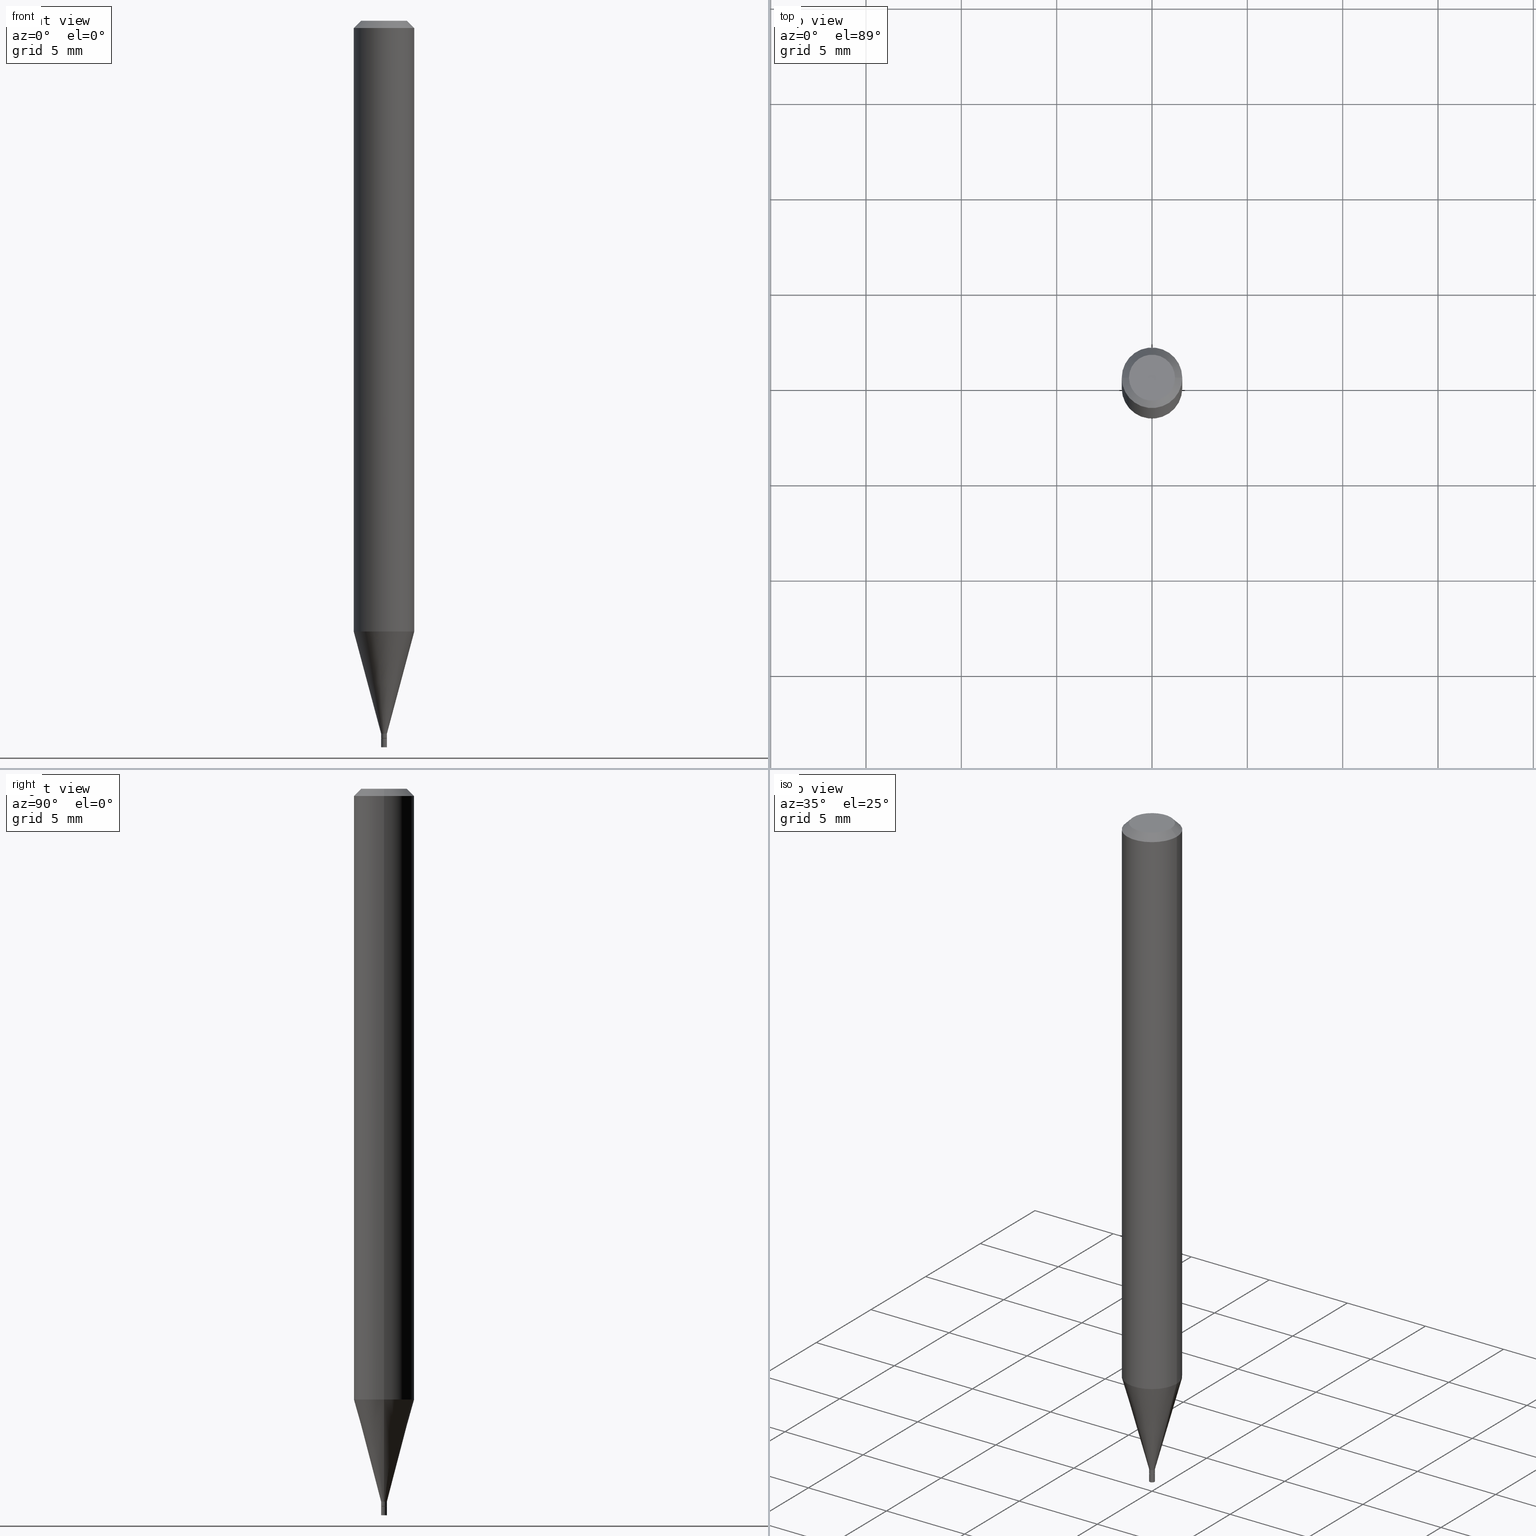
[diagram: canonical four-view strip — front | top / right | iso, engineering-drawing reading convention]
A machine part, canonical four-view strip (front | top / right | iso — engineering-drawing reading convention). The complete STEP part file that produces these views, byte-faithful:
ISO-10303-21;
HEADER;
FILE_DESCRIPTION (( 'STEP AP203' ),
    '1' );
FILE_NAME ('02208.STEP',
    '2024-03-18T19:54:24',
    ( '' ),
    ( '' ),
    'SwSTEP 2.0',
    'SolidWorks 2023',
    '' );
FILE_SCHEMA (( 'CONFIG_CONTROL_DESIGN' ));
ENDSEC;

DATA;
#1 = LOCAL_TIME ( 15, 54, 24.00000000000000000, #391 ) ;
#2 = CARTESIAN_POINT ( 'NONE',  ( 0.006000000000000000125, -5.216273120231660134E-15, -1.482000000000000206 ) ) ;
#3 = DIRECTION ( 'NONE',  ( -2.445468806185136877E-29, 3.491481338843145188E-15, 1.000000000000000000 ) ) ;
#4 = ORIENTED_EDGE ( 'NONE', *, *, #393, .T. ) ;
#5 = CONICAL_SURFACE ( 'NONE', #339, 0.005499999999999999681, 0.7853981633974718157 ) ;
#6 = AXIS2_PLACEMENT_3D ( 'NONE', #270, #87, #414 ) ;
#7 = CARTESIAN_POINT ( 'NONE',  ( 0.005999999999999918593, -5.181358306843227696E-15, -1.471999999999999975 ) ) ;
#8 = CARTESIAN_POINT ( 'NONE',  ( 3.668203209277705088E-31, -5.237222008264718399E-17, -0.01499999999999999944 ) ) ;
#9 = LINE ( 'NONE', #441, #331 ) ;
#10 = EDGE_LOOP ( 'NONE', ( #173, #26, #170, #417 ) ) ;
#11 = EDGE_CURVE ( 'NONE', #223, #123, #349, .T. ) ;
#12 = MANIFOLD_SOLID_BREP ( 'Body-Move/Copy2[2]', #199 ) ;
#13 = DIRECTION ( 'NONE',  ( -2.445468806185136877E-29, 3.491481338843145188E-15, 1.000000000000000000 ) ) ;
#14 = DIRECTION ( 'NONE',  ( -2.445468806185136597E-29, 3.491481338843145583E-15, 1.000000000000000000 ) ) ;
#15 = ORIENTED_EDGE ( 'NONE', *, *, #212, .T. ) ;
#16 = FACE_OUTER_BOUND ( 'NONE', #401, .T. ) ;
#17 = CC_DESIGN_APPROVAL ( #76, ( #68 ) ) ;
#18 = CARTESIAN_POINT ( 'NONE',  ( 1.873992581615772204E-44, -2.675564747051046294E-30, -7.663122002930588880E-16 ) ) ;
#19 = ORIENTED_EDGE ( 'NONE', *, *, #226, .T. ) ;
#20 = CYLINDRICAL_SURFACE ( 'NONE', #390, 0.005999999999999919460 ) ;
#21 = DIRECTION ( 'NONE',  ( 0.2588190451025215721, 1.565188264969619995E-15, 0.9659258262890679791 ) ) ;
#22 = CARTESIAN_POINT ( 'NONE',  ( 1.873992581615772204E-44, -2.675564747051046294E-30, -7.663122002930588880E-16 ) ) ;
#23 = ORIENTED_EDGE ( 'NONE', *, *, #50, .F. ) ;
#24 = CARTESIAN_POINT ( 'NONE',  ( 0.000000000000000000, 0.000000000000000000, 0.000000000000000000 ) ) ;
#25 = APPROVAL_DATE_TIME ( #176, #108 ) ;
#26 = ORIENTED_EDGE ( 'NONE', *, *, #60, .T. ) ;
#27 = COORDINATED_UNIVERSAL_TIME_OFFSET ( 5, 0, .BEHIND. ) ;
#28 = ORIENTED_EDGE ( 'NONE', *, *, #445, .T. ) ;
#29 = CONICAL_SURFACE ( 'NONE', #77, 0.005499999999999999681, 0.7853981633974718157 ) ;
#30 = LOCAL_TIME ( 15, 54, 24.00000000000000000, #27 ) ;
#31 = ORIENTED_EDGE ( 'NONE', *, *, #396, .F. ) ;
#32 = CC_DESIGN_PERSON_AND_ORGANIZATION_ASSIGNMENT ( #203, #34, ( #216 ) ) ;
#33 = APPROVAL_STATUS ( 'not_yet_approved' ) ;
#34 = PERSON_AND_ORGANIZATION_ROLE ( 'creator' ) ;
#35 = APPLICATION_CONTEXT ( 'configuration controlled 3d designs of mechanical parts and assemblies' ) ;
#36 = AXIS2_PLACEMENT_3D ( 'NONE', #82, #234, #56 ) ;
#37 = CARTESIAN_POINT ( 'NONE',  ( 0.005499999999999999681, -5.212781638892817127E-15, -1.482000000000000206 ) ) ;
#38 = FACE_OUTER_BOUND ( 'NONE', #352, .T. ) ;
#39 = DIRECTION ( 'NONE',  ( 1.000000000000000000, -6.982962677686245411E-15, 0.000000000000000000 ) ) ;
#40 = AXIS2_PLACEMENT_3D ( 'NONE', #52, #126, #332 ) ;
#41 = APPROVAL_PERSON_ORGANIZATION ( #425, #76, #208 ) ;
#42 = DIRECTION ( 'NONE',  ( 1.000000000000000000, -6.982962677686332186E-15, 0.000000000000000000 ) ) ;
#43 = PRODUCT_RELATED_PRODUCT_CATEGORY ( 'detail', '', ( #67 ) ) ;
#44 = DIRECTION ( 'NONE',  ( 1.000000000000000000, -6.982962677686245411E-15, 0.000000000000000000 ) ) ;
#45 = DIRECTION ( 'NONE',  ( -1.000000000000000000, 6.982962677686266711E-15, 0.000000000000000000 ) ) ;
#46 = VERTEX_POINT ( 'NONE', #37 ) ;
#47 = CIRCLE ( 'NONE', #119, 0.005999999999999922062 ) ;
#48 = LINE ( 'NONE', #449, #96 ) ;
#49 =( GEOMETRIC_REPRESENTATION_CONTEXT ( 3 ) GLOBAL_UNCERTAINTY_ASSIGNED_CONTEXT ( ( #192 ) ) GLOBAL_UNIT_ASSIGNED_CONTEXT ( ( #302, #308, #410 ) ) REPRESENTATION_CONTEXT ( 'NONE', 'WORKASPACE' ) );
#50 = EDGE_CURVE ( 'NONE', #89, #387, #323, .T. ) ;
#51 = DIRECTION ( 'NONE',  ( -2.445468806185136597E-29, 3.491481338843145583E-15, 1.000000000000000000 ) ) ;
#52 = CARTESIAN_POINT ( 'NONE',  ( 3.624184770766373010E-29, -5.174375344165542471E-15, -1.482000000000000206 ) ) ;
#53 = DIRECTION ( 'NONE',  ( 1.000000000000000000, -6.982962677686261977E-15, 0.000000000000000000 ) ) ;
#54 = FACE_OUTER_BOUND ( 'NONE', #366, .T. ) ;
#55 = ORIENTED_EDGE ( 'NONE', *, *, #195, .F. ) ;
#56 = DIRECTION ( 'NONE',  ( 1.000000000000000000, -6.982962677686266711E-15, 4.876176775795935793E-29 ) ) ;
#57 = CONICAL_SURFACE ( 'NONE', #237, 0.005999999999999918593, 0.2617993877991502960 ) ;
#58 = VECTOR ( 'NONE', #13, 39.37007874015748143 ) ;
#59 = CARTESIAN_POINT ( 'NONE',  ( -0.06250000000000000000, -1.783718768135502348E-15, -0.01499999999999999944 ) ) ;
#60 = EDGE_CURVE ( 'NONE', #215, #292, #47, .T. ) ;
#61 = ORIENTED_EDGE ( 'NONE', *, *, #265, .T. ) ;
#62 = DATE_AND_TIME ( #242, #463 ) ;
#63 = ORIENTED_EDGE ( 'NONE', *, *, #456, .T. ) ;
#64 = ADVANCED_FACE ( 'NONE', ( #213 ), #287, .F. ) ;
#65 = AXIS2_PLACEMENT_3D ( 'NONE', #275, #266, #79 ) ;
#66 = ORIENTED_EDGE ( 'NONE', *, *, #309, .F. ) ;
#67 = PRODUCT ( '02208', '02208', '', ( #346 ) ) ;
#68 = SECURITY_CLASSIFICATION ( '', '', #312 ) ;
#69 = DATE_TIME_ROLE ( 'classification_date' ) ;
#70 = VERTEX_POINT ( 'NONE', #250 ) ;
#71 = CARTESIAN_POINT ( 'NONE',  ( 3.624184770766373010E-29, -5.174375344165542471E-15, -1.482000000000000206 ) ) ;
#72 = CIRCLE ( 'NONE', #268, 0.04749999999999999362 ) ;
#73 = AXIS2_PLACEMENT_3D ( 'NONE', #24, #422, #343 ) ;
#74 = EDGE_CURVE ( 'NONE', #46, #292, #254, .T. ) ;
#75 = CARTESIAN_POINT ( 'NONE',  ( 3.624184770766373010E-29, -5.174375344165542471E-15, -1.482000000000000206 ) ) ;
#76 = APPROVAL ( #423, 'UNSPECIFIED' ) ;
#77 = AXIS2_PLACEMENT_3D ( 'NONE', #429, #400, #105 ) ;
#78 = ORIENTED_EDGE ( 'NONE', *, *, #11, .T. ) ;
#79 = DIRECTION ( 'NONE',  ( 1.000000000000000000, -6.982962677686265922E-15, 4.876176775795935793E-29 ) ) ;
#80 = ORIENTED_EDGE ( 'NONE', *, *, #428, .T. ) ;
#81 = ADVANCED_FACE ( 'NONE', ( #322 ), #5, .T. ) ;
#82 = CARTESIAN_POINT ( 'NONE',  ( 0.000000000000000000, 0.000000000000000000, 0.000000000000000000 ) ) ;
#83 = DIRECTION ( 'NONE',  ( 2.438088387897960049E-29, -3.491481338843145188E-15, -1.000000000000000000 ) ) ;
#84 = ORIENTED_EDGE ( 'NONE', *, *, #379, .F. ) ;
#85 = AXIS2_PLACEMENT_3D ( 'NONE', #374, #194, #338 ) ;
#86 = CARTESIAN_POINT ( 'NONE',  ( 0.06250000000000000000, -4.888073874380388472E-16, -0.01499999999999999944 ) ) ;
#87 = DIRECTION ( 'NONE',  ( -2.445468806185136597E-29, 3.491481338843145583E-15, 1.000000000000000000 ) ) ;
#88 = DIRECTION ( 'NONE',  ( -2.445468806185136597E-29, 3.491481338843145583E-15, 1.000000000000000000 ) ) ;
#89 = VERTEX_POINT ( 'NONE', #141 ) ;
#90 = CARTESIAN_POINT ( 'NONE',  ( 3.668203209277704895E-29, -5.237222008264718177E-15, -1.500000000000000222 ) ) ;
#91 = CARTESIAN_POINT ( 'NONE',  ( 3.576687321579069994E-29, -5.368277968210015545E-15, -1.500000000000000222 ) ) ;
#92 = CARTESIAN_POINT ( 'NONE',  ( 3.599730082704520905E-29, -5.139460530777110821E-15, -1.471999999999999975 ) ) ;
#93 = ORIENTED_EDGE ( 'NONE', *, *, #385, .T. ) ;
#94 = ADVANCED_FACE ( 'NONE', ( #38 ), #29, .T. ) ;
#95 = DATE_AND_TIME ( #419, #1 ) ;
#96 = VECTOR ( 'NONE', #21, 39.37007874015748143 ) ;
#97 = ORIENTED_EDGE ( 'NONE', *, *, #278, .T. ) ;
#98 = ORIENTED_EDGE ( 'NONE', *, *, #379, .T. ) ;
#99 = ADVANCED_FACE ( 'NONE', ( #395 ), #294, .T. ) ;
#100 = APPROVAL_STATUS ( 'not_yet_approved' ) ;
#101 = VECTOR ( 'NONE', #362, 39.37007874015748143 ) ;
#102 = CC_DESIGN_SECURITY_CLASSIFICATION ( #68, ( #216 ) ) ;
#103 = APPROVAL_ROLE ( '' ) ;
#104 = DIRECTION ( 'NONE',  ( 2.438088387897960049E-29, -3.491481338843145188E-15, -1.000000000000000000 ) ) ;
#105 = DIRECTION ( 'NONE',  ( 1.000000000000000000, -6.982962677686245411E-15, 0.000000000000000000 ) ) ;
#106 = AXIS2_PLACEMENT_3D ( 'NONE', #303, #151, #447 ) ;
#107 = VECTOR ( 'NONE', #418, 39.37007874015748143 ) ;
#108 = APPROVAL ( #33, 'UNSPECIFIED' ) ;
#109 = DIRECTION ( 'NONE',  ( -1.000000000000000000, 6.982962677686265922E-15, -4.876176775795935793E-29 ) ) ;
#110 = CIRCLE ( 'NONE', #177, 0.005999999999999918593 ) ;
#111 = AXIS2_PLACEMENT_3D ( 'NONE', #91, #337, #297 ) ;
#112 = DIRECTION ( 'NONE',  ( 1.000000000000000000, -6.982962677686265922E-15, 0.000000000000000000 ) ) ;
#113 = FACE_OUTER_BOUND ( 'NONE', #148, .T. ) ;
#114 = CARTESIAN_POINT ( 'NONE',  ( 3.668203209277705088E-31, -5.237222008264718399E-17, -0.01499999999999999944 ) ) ;
#115 = VERTEX_POINT ( 'NONE', #324 ) ;
#116 = DIRECTION ( 'NONE',  ( -2.445468806185136597E-29, 3.491481338843145583E-15, 1.000000000000000000 ) ) ;
#117 = CARTESIAN_POINT ( 'NONE',  ( -0.005999999999999919460, 4.263256414560543888E-17, -2.951361054152903651E-31 ) ) ;
#118 = DIRECTION ( 'NONE',  ( -2.445468806185136597E-29, 3.491481338843145583E-15, 1.000000000000000000 ) ) ;
#119 = AXIS2_PLACEMENT_3D ( 'NONE', #466, #146, #288 ) ;
#120 = CIRCLE ( 'NONE', #394, 0.005499999999999999681 ) ;
#121 = CARTESIAN_POINT ( 'NONE',  ( -0.006000000000000000125, 4.263256414560601204E-17, -2.951361054152943501E-31 ) ) ;
#122 = DIRECTION ( 'NONE',  ( -2.445468806185136597E-29, 3.491481338843145583E-15, 1.000000000000000000 ) ) ;
#123 = VERTEX_POINT ( 'NONE', #2 ) ;
#124 = DIRECTION ( 'NONE',  ( 1.000000000000000000, -6.982962677686262766E-15, 0.000000000000000000 ) ) ;
#125 = CC_DESIGN_PERSON_AND_ORGANIZATION_ASSIGNMENT ( #284, #277, ( #216 ) ) ;
#126 = DIRECTION ( 'NONE',  ( -2.445468806185136597E-29, 3.491481338843145583E-15, 1.000000000000000000 ) ) ;
#127 = ORIENTED_EDGE ( 'NONE', *, *, #180, .F. ) ;
#128 = APPROVAL_DATE_TIME ( #238, #76 ) ;
#129 = ORIENTED_EDGE ( 'NONE', *, *, #184, .F. ) ;
#130 = DIRECTION ( 'NONE',  ( 1.000000000000000000, -6.982962677686267499E-15, 4.876176775795935793E-29 ) ) ;
#131 = CIRCLE ( 'NONE', #106, 0.06250000000000000000 ) ;
#132 = AXIS2_PLACEMENT_3D ( 'NONE', #193, #230, #137 ) ;
#133 = ORIENTED_EDGE ( 'NONE', *, *, #347, .F. ) ;
#134 = ADVANCED_FACE ( 'NONE', ( #434 ), #369, .T. ) ;
#135 = PERSON_AND_ORGANIZATION_ROLE ( 'design_owner' ) ;
#136 = ORIENTED_EDGE ( 'NONE', *, *, #393, .F. ) ;
#137 = DIRECTION ( 'NONE',  ( 1.000000000000000000, 0.000000000000000000, 0.000000000000000000 ) ) ;
#138 = AXIS2_PLACEMENT_3D ( 'NONE', #358, #181, #182 ) ;
#139 = ADVANCED_FACE ( 'NONE', ( #298 ), #154, .T. ) ;
#140 = CARTESIAN_POINT ( 'NONE',  ( -0.005999999999999918593, -5.096827966631505561E-15, -1.471999999999999975 ) ) ;
#141 = CARTESIAN_POINT ( 'NONE',  ( -0.005999999999999918593, -4.527991246334962700E-15, -1.471999999999999975 ) ) ;
#142 = CIRCLE ( 'NONE', #206, 0.06250000000000000000 ) ;
#143 = AXIS2_PLACEMENT_3D ( 'NONE', #329, #116, #124 ) ;
#144 = ADVANCED_FACE ( 'NONE', ( #54 ), #57, .T. ) ;
#145 = PRODUCT_DEFINITION_SHAPE ( 'NONE', 'NONE',  #325 ) ;
#146 = DIRECTION ( 'NONE',  ( -2.445468806185136597E-29, 3.491481338843145583E-15, 1.000000000000000000 ) ) ;
#147 = LINE ( 'NONE', #117, #224 ) ;
#148 = EDGE_LOOP ( 'NONE', ( #397, #66, #371, #19 ) ) ;
#149 = PLANE ( 'NONE',  #111 ) ;
#150 = EDGE_CURVE ( 'NONE', #190, #89, #110, .T. ) ;
#151 = DIRECTION ( 'NONE',  ( -2.445468806185136597E-29, 3.491481338843145583E-15, 1.000000000000000000 ) ) ;
#152 = EDGE_LOOP ( 'NONE', ( #167, #460 ) ) ;
#153 = LENGTH_MEASURE_WITH_UNIT ( LENGTH_MEASURE( 0.02539999999999999897 ), #305 );
#154 = CYLINDRICAL_SURFACE ( 'NONE', #398, 0.006000000000000000125 ) ;
#155 = VERTEX_POINT ( 'NONE', #59 ) ;
#156 = DIRECTION ( 'NONE',  ( -1.000000000000000000, 6.982962677686266711E-15, 0.000000000000000000 ) ) ;
#157 = DIRECTION ( 'NONE',  ( -2.445468806185136877E-29, 3.491481338843145188E-15, 1.000000000000000000 ) ) ;
#158 = VERTEX_POINT ( 'NONE', #365 ) ;
#159 = CC_DESIGN_DATE_AND_TIME_ASSIGNMENT ( #282, #69, ( #68 ) ) ;
#160 = AXIS2_PLACEMENT_3D ( 'NONE', #183, #104, #109 ) ;
#161 = AXIS2_PLACEMENT_3D ( 'NONE', #90, #198, #236 ) ;
#162 = LINE ( 'NONE', #440, #296 ) ;
#163 = DIMENSIONAL_EXPONENTS ( 1.000000000000000000, 0.000000000000000000, 0.000000000000000000, 0.000000000000000000, 0.000000000000000000, 0.000000000000000000, 0.000000000000000000 ) ;
#164 = CARTESIAN_POINT ( 'NONE',  ( 0.06250000000000000000, -4.811533449433679005E-16, -0.01499999999999999944 ) ) ;
#165 = EDGE_LOOP ( 'NONE', ( #129, #257, #313, #426 ) ) ;
#166 = DIRECTION ( 'NONE',  ( 1.000000000000000000, -6.982962677686267499E-15, 4.852736867747366768E-29 ) ) ;
#167 = ORIENTED_EDGE ( 'NONE', *, *, #309, .T. ) ;
#168 = CALENDAR_DATE ( 2024, 18, 3 ) ;
#169 = ADVANCED_FACE ( 'NONE', ( #370 ), #435, .T. ) ;
#170 = ORIENTED_EDGE ( 'NONE', *, *, #195, .T. ) ;
#171 = CIRCLE ( 'NONE', #40, 0.005499999999999999681 ) ;
#172 = AXIS2_PLACEMENT_3D ( 'NONE', #8, #262, #156 ) ;
#173 = ORIENTED_EDGE ( 'NONE', *, *, #212, .F. ) ;
#174 = PERSON_AND_ORGANIZATION ( #252, #225 ) ;
#175 = EDGE_LOOP ( 'NONE', ( #127, #84 ) ) ;
#176 = DATE_AND_TIME ( #168, #30 ) ;
#177 = AXIS2_PLACEMENT_3D ( 'NONE', #219, #88, #301 ) ;
#178 = CIRCLE ( 'NONE', #161, 0.006000000000000000125 ) ;
#179 = DIRECTION ( 'NONE',  ( 0.7071067811865642261, -2.468850131082431399E-15, 0.7071067811865309194 ) ) ;
#180 = EDGE_CURVE ( 'NONE', #46, #304, #171, .T. ) ;
#181 = DIRECTION ( 'NONE',  ( -2.445468806185136597E-29, 3.491481338843145583E-15, 1.000000000000000000 ) ) ;
#182 = DIRECTION ( 'NONE',  ( 1.000000000000000000, -6.982962677686266711E-15, 4.876176775795935793E-29 ) ) ;
#183 = CARTESIAN_POINT ( 'NONE',  ( 4.189777606615384004E-17, 0.005999999999994825445, -1.482000000000000206 ) ) ;
#184 = EDGE_CURVE ( 'NONE', #158, #115, #72, .T. ) ;
#185 = ADVANCED_BREP_SHAPE_REPRESENTATION ( '02208', ( #326, #12, #132 ), #49 ) ;
#186 = CYLINDRICAL_SURFACE ( 'NONE', #36, 0.06250000000000000000 ) ;
#187 = DIRECTION ( 'NONE',  ( 1.000000000000000000, -6.982962677686265922E-15, 0.000000000000000000 ) ) ;
#188 = CARTESIAN_POINT ( 'NONE',  ( 3.622962036363280209E-29, -5.172629603496120967E-15, -1.481500000000000261 ) ) ;
#189 = DIRECTION ( 'NONE',  ( 1.000000000000000000, -6.982962677686266711E-15, 0.000000000000000000 ) ) ;
#190 = VERTEX_POINT ( 'NONE', #7 ) ;
#191 = CARTESIAN_POINT ( 'NONE',  ( 0.06250000000000000000, -4.364351673553916694E-16, 3.047610484872459871E-30 ) ) ;
#192 = UNCERTAINTY_MEASURE_WITH_UNIT (LENGTH_MEASURE( 1.000000000000000082E-05 ), #302, 'distance_accuracy_value', 'NONE');
#193 = CARTESIAN_POINT ( 'NONE',  ( 0.000000000000000000, 0.000000000000000000, 0.000000000000000000 ) ) ;
#194 = DIRECTION ( 'NONE',  ( -2.445468806185136597E-29, 3.491481338843145583E-15, 1.000000000000000000 ) ) ;
#195 = EDGE_CURVE ( 'NONE', #292, #190, #9, .T. ) ;
#196 = CARTESIAN_POINT ( 'NONE',  ( -0.06250000000000000000, -3.959154526038420628E-15, -1.261139129372358836 ) ) ;
#197 = DIRECTION ( 'NONE',  ( 1.000000000000000000, -6.982962677686267499E-15, 4.852736867747366768E-29 ) ) ;
#198 = DIRECTION ( 'NONE',  ( -2.445468806185136597E-29, 3.491481338843145583E-15, 1.000000000000000000 ) ) ;
#199 = CLOSED_SHELL ( 'NONE', ( #316, #81, #169, #437, #144, #134, #99, #430, #210, #240, #94, #342 ) ) ;
#200 = DIRECTION ( 'NONE',  ( -2.445468806185136877E-29, 3.491481338843145188E-15, 1.000000000000000000 ) ) ;
#201 = CARTESIAN_POINT ( 'NONE',  ( -0.005499999999999999681, -5.132646266524626908E-15, -1.482000000000000206 ) ) ;
#202 = EDGE_LOOP ( 'NONE', ( #93, #15, #388, #55 ) ) ;
#203 = PERSON_AND_ORGANIZATION ( #252, #225 ) ;
#204 = PERSON_AND_ORGANIZATION_ROLE ( 'creator' ) ;
#205 = EDGE_CURVE ( 'NONE', #354, #387, #131, .T. ) ;
#206 = AXIS2_PLACEMENT_3D ( 'NONE', #406, #51, #189 ) ;
#207 = AXIS2_PLACEMENT_3D ( 'NONE', #188, #377, #53 ) ;
#208 = APPROVAL_ROLE ( '' ) ;
#209 = EDGE_LOOP ( 'NONE', ( #228, #97, #28, #276 ) ) ;
#210 = ADVANCED_FACE ( 'NONE', ( #263 ), #404, .F. ) ;
#211 = AXIS2_PLACEMENT_3D ( 'NONE', #22, #344, #166 ) ;
#212 = EDGE_CURVE ( 'NONE', #215, #89, #147, .T. ) ;
#213 = FACE_OUTER_BOUND ( 'NONE', #392, .T. ) ;
#214 = DIRECTION ( 'NONE',  ( -2.445468806185136597E-29, 3.491481338843145583E-15, 1.000000000000000000 ) ) ;
#215 = VERTEX_POINT ( 'NONE', #222 ) ;
#216 = PRODUCT_DEFINITION_FORMATION_WITH_SPECIFIED_SOURCE ( 'ANY', '', #67, .NOT_KNOWN. ) ;
#217 = CC_DESIGN_PERSON_AND_ORGANIZATION_ASSIGNMENT ( #285, #135, ( #67 ) ) ;
#218 = LINE ( 'NONE', #300, #58 ) ;
#219 = CARTESIAN_POINT ( 'NONE',  ( 3.599730082704520905E-29, -5.139460530777110821E-15, -1.471999999999999975 ) ) ;
#220 = APPLICATION_CONTEXT ( 'configuration controlled 3d designs of mechanical parts and assemblies' ) ;
#221 = ORIENTED_EDGE ( 'NONE', *, *, #385, .F. ) ;
#222 = CARTESIAN_POINT ( 'NONE',  ( -0.005999999999999922062, -5.129997039350515707E-15, -1.481500000000000261 ) ) ;
#223 = VERTEX_POINT ( 'NONE', #273 ) ;
#224 = VECTOR ( 'NONE', #157, 39.37007874015748143 ) ;
#225 = ORGANIZATION ( 'UNSPECIFIED', 'UNSPECIFIED', '' ) ;
#226 = EDGE_CURVE ( 'NONE', #155, #248, #142, .T. ) ;
#227 = DIRECTION ( 'NONE',  ( 0.7071067811865656694, -7.319954787623317576E-15, -0.7071067811865294761 ) ) ;
#228 = ORIENTED_EDGE ( 'NONE', *, *, #428, .F. ) ;
#229 = DIRECTION ( 'NONE',  ( -2.445468806185136877E-29, 3.491481338843145188E-15, 1.000000000000000000 ) ) ;
#230 = DIRECTION ( 'NONE',  ( 0.000000000000000000, 0.000000000000000000, 1.000000000000000000 ) ) ;
#231 = CARTESIAN_POINT ( 'NONE',  ( 0.000000000000000000, 0.000000000000000000, 0.000000000000000000 ) ) ;
#232 = EDGE_LOOP ( 'NONE', ( #283, #255 ) ) ;
#233 = CARTESIAN_POINT ( 'NONE',  ( -0.06250000000000000000, 3.840629472727444916E-16, -0.01499999999999999944 ) ) ;
#234 = DIRECTION ( 'NONE',  ( -2.445468806185136597E-29, 3.491481338843145583E-15, 1.000000000000000000 ) ) ;
#235 = CARTESIAN_POINT ( 'NONE',  ( 0.005999999999999922062, -5.214527379562237841E-15, -1.481500000000000261 ) ) ;
#236 = DIRECTION ( 'NONE',  ( 1.000000000000000000, -6.982962677686332186E-15, 0.000000000000000000 ) ) ;
#237 = AXIS2_PLACEMENT_3D ( 'NONE', #92, #122, #112 ) ;
#238 = DATE_AND_TIME ( #458, #340 ) ;
#239 = ORIENTED_EDGE ( 'NONE', *, *, #359, .T. ) ;
#240 = ADVANCED_FACE ( 'NONE', ( #295 ), #438, .F. ) ;
#241 = PERSON_AND_ORGANIZATION ( #252, #225 ) ;
#242 = CALENDAR_DATE ( 2024, 18, 3 ) ;
#243 = ORIENTED_EDGE ( 'NONE', *, *, #180, .T. ) ;
#244 = AXIS2_PLACEMENT_3D ( 'NONE', #71, #361, #42 ) ;
#245 = COORDINATED_UNIVERSAL_TIME_OFFSET ( 5, 0, .BEHIND. ) ;
#246 = LOCAL_TIME ( 15, 54, 24.00000000000000000, #249 ) ;
#247 = CC_DESIGN_PERSON_AND_ORGANIZATION_ASSIGNMENT ( #174, #319, ( #68 ) ) ;
#248 = VERTEX_POINT ( 'NONE', #86 ) ;
#249 = COORDINATED_UNIVERSAL_TIME_OFFSET ( 5, 0, .BEHIND. ) ;
#250 = CARTESIAN_POINT ( 'NONE',  ( 0.006000000000000000125, -5.279119784330836629E-15, -1.500000000000000222 ) ) ;
#251 = CC_DESIGN_DATE_AND_TIME_ASSIGNMENT ( #95, #386, ( #325 ) ) ;
#252 = PERSON ( 'UNSPECIFIED', 'UNSPECIFIED', 'UNSPECIFIED', ('UNSPECIFIED'), ('UNSPECIFIED'), ('UNSPECIFIED') ) ;
#253 = AXIS2_PLACEMENT_3D ( 'NONE', #306, #450, #416 ) ;
#254 = LINE ( 'NONE', #357, #462 ) ;
#255 = ORIENTED_EDGE ( 'NONE', *, *, #278, .F. ) ;
#256 = EDGE_CURVE ( 'NONE', #158, #248, #260, .T. ) ;
#257 = ORIENTED_EDGE ( 'NONE', *, *, #256, .T. ) ;
#258 = APPROVAL_PERSON_ORGANIZATION ( #345, #108, #103 ) ;
#259 = EDGE_LOOP ( 'NONE', ( #243, #384, #221, #408 ) ) ;
#260 = LINE ( 'NONE', #164, #281 ) ;
#261 = ORIENTED_EDGE ( 'NONE', *, *, #205, .T. ) ;
#262 = DIRECTION ( 'NONE',  ( 2.445468806185136597E-29, -3.491481338843145583E-15, -1.000000000000000000 ) ) ;
#263 = FACE_OUTER_BOUND ( 'NONE', #152, .T. ) ;
#264 = ORIENTED_EDGE ( 'NONE', *, *, #396, .T. ) ;
#265 = EDGE_CURVE ( 'NONE', #89, #190, #436, .T. ) ;
#266 = DIRECTION ( 'NONE',  ( -2.438088387897960049E-29, 3.491481338843145188E-15, 1.000000000000000000 ) ) ;
#267 = EDGE_LOOP ( 'NONE', ( #23, #61, #63, #31 ) ) ;
#268 = AXIS2_PLACEMENT_3D ( 'NONE', #18, #14, #197 ) ;
#269 = VECTOR ( 'NONE', #402, 39.37007874015748143 ) ;
#270 = CARTESIAN_POINT ( 'NONE',  ( 3.624184770766373010E-29, -5.174375344165542471E-15, -1.482000000000000206 ) ) ;
#271 = CIRCLE ( 'NONE', #6, 0.006000000000000000125 ) ;
#272 = DIRECTION ( 'NONE',  ( -2.445468806185136597E-29, 3.491481338843145583E-15, 1.000000000000000000 ) ) ;
#273 = CARTESIAN_POINT ( 'NONE',  ( -0.006000000000000000125, -5.163166112069524275E-15, -1.482000000000000206 ) ) ;
#274 = FACE_OUTER_BOUND ( 'NONE', #232, .T. ) ;
#275 = CARTESIAN_POINT ( 'NONE',  ( 3.624184770766373010E-29, -5.174375344165542471E-15, -1.482000000000000206 ) ) ;
#276 = ORIENTED_EDGE ( 'NONE', *, *, #11, .F. ) ;
#277 = PERSON_AND_ORGANIZATION_ROLE ( 'design_supplier' ) ;
#278 = EDGE_CURVE ( 'NONE', #375, #70, #314, .T. ) ;
#279 = LINE ( 'NONE', #233, #107 ) ;
#280 = CLOSED_SHELL ( 'NONE', ( #139, #411, #367, #64 ) ) ;
#281 = VECTOR ( 'NONE', #227, 39.37007874015748143 ) ;
#282 = DATE_AND_TIME ( #286, #246 ) ;
#283 = ORIENTED_EDGE ( 'NONE', *, *, #359, .F. ) ;
#284 = PERSON_AND_ORGANIZATION ( #252, #225 ) ;
#285 = PERSON_AND_ORGANIZATION ( #252, #225 ) ;
#286 = CALENDAR_DATE ( 2024, 18, 3 ) ;
#287 = PLANE ( 'NONE',  #160 ) ;
#288 = DIRECTION ( 'NONE',  ( 1.000000000000000000, -6.982962677686261977E-15, 0.000000000000000000 ) ) ;
#289 = APPROVAL ( #100, 'UNSPECIFIED' ) ;
#290 = AXIS2_PLACEMENT_3D ( 'NONE', #114, #334, #45 ) ;
#291 = CC_DESIGN_APPROVAL ( #108, ( #216 ) ) ;
#292 = VERTEX_POINT ( 'NONE', #235 ) ;
#293 = CARTESIAN_POINT ( 'NONE',  ( 3.599730082704520905E-29, -5.139460530777110821E-15, -1.471999999999999975 ) ) ;
#294 = CYLINDRICAL_SURFACE ( 'NONE', #138, 0.06250000000000000000 ) ;
#295 = FACE_OUTER_BOUND ( 'NONE', #175, .T. ) ;
#296 = VECTOR ( 'NONE', #200, 39.37007874015748143 ) ;
#297 = DIRECTION ( 'NONE',  ( 1.000000000000000000, -6.982962677686265922E-15, 4.876176775795935793E-29 ) ) ;
#298 = FACE_OUTER_BOUND ( 'NONE', #327, .T. ) ;
#299 = EDGE_CURVE ( 'NONE', #304, #215, #381, .T. ) ;
#300 = CARTESIAN_POINT ( 'NONE',  ( -0.06250000000000000000, 4.440892098500626162E-16, -3.074334431409316114E-30 ) ) ;
#301 = DIRECTION ( 'NONE',  ( 1.000000000000000000, -6.982962677686265922E-15, 0.000000000000000000 ) ) ;
#302 =( CONVERSION_BASED_UNIT ( 'INCH', #153 ) LENGTH_UNIT ( ) NAMED_UNIT ( #163 ) );
#303 = CARTESIAN_POINT ( 'NONE',  ( 3.084076401139584811E-29, -4.403243735888483244E-15, -1.261139129372358836 ) ) ;
#304 = VERTEX_POINT ( 'NONE', #201 ) ;
#305 =( LENGTH_UNIT ( ) NAMED_UNIT ( * ) SI_UNIT ( $, .METRE. ) );
#306 = CARTESIAN_POINT ( 'NONE',  ( 3.668203209277704895E-29, -5.237222008264718177E-15, -1.500000000000000222 ) ) ;
#307 = ORIENTED_EDGE ( 'NONE', *, *, #321, .F. ) ;
#308 =( NAMED_UNIT ( * ) PLANE_ANGLE_UNIT ( ) SI_UNIT ( $, .RADIAN. ) );
#309 = EDGE_CURVE ( 'NONE', #115, #158, #350, .T. ) ;
#310 = FACE_OUTER_BOUND ( 'NONE', #202, .T. ) ;
#311 = EDGE_LOOP ( 'NONE', ( #136, #264, #451, #360 ) ) ;
#312 = SECURITY_CLASSIFICATION_LEVEL ( 'unclassified' ) ;
#313 = ORIENTED_EDGE ( 'NONE', *, *, #465, .T. ) ;
#314 = CIRCLE ( 'NONE', #253, 0.006000000000000000125 ) ;
#315 = ORIENTED_EDGE ( 'NONE', *, *, #205, .F. ) ;
#316 = ADVANCED_FACE ( 'NONE', ( #310 ), #453, .T. ) ;
#317 = APPROVAL_DATE_TIME ( #62, #289 ) ;
#318 = ORIENTED_EDGE ( 'NONE', *, *, #74, .T. ) ;
#319 = PERSON_AND_ORGANIZATION_ROLE ( 'classification_officer' ) ;
#320 = CIRCLE ( 'NONE', #143, 0.06250000000000000000 ) ;
#321 = EDGE_CURVE ( 'NONE', #354, #248, #409, .T. ) ;
#322 = FACE_OUTER_BOUND ( 'NONE', #259, .T. ) ;
#323 = LINE ( 'NONE', #140, #101 ) ;
#324 = CARTESIAN_POINT ( 'NONE',  ( -0.04749999999999999362, 3.578768372314197194E-16, -7.663122002930613532E-16 ) ) ;
#325 = PRODUCT_DEFINITION ( 'UNKNOWN', '', #216, #363 ) ;
#326 = MANIFOLD_SOLID_BREP ( 'Body-Move/Copy2[1]', #280 ) ;
#327 = EDGE_LOOP ( 'NONE', ( #239, #80, #133, #424 ) ) ;
#328 = CARTESIAN_POINT ( 'NONE',  ( -0.005499999999999999681, -5.135295493698737320E-15, -1.482000000000000206 ) ) ;
#329 = CARTESIAN_POINT ( 'NONE',  ( 3.084076401139584811E-29, -4.403243735888483244E-15, -1.261139129372358836 ) ) ;
#330 = CC_DESIGN_PERSON_AND_ORGANIZATION_ASSIGNMENT ( #351, #204, ( #325 ) ) ;
#331 = VECTOR ( 'NONE', #3, 39.37007874015748143 ) ;
#332 = DIRECTION ( 'NONE',  ( 1.000000000000000000, -6.982962677686245411E-15, 0.000000000000000000 ) ) ;
#333 = ORIENTED_EDGE ( 'NONE', *, *, #50, .T. ) ;
#334 = DIRECTION ( 'NONE',  ( 2.445468806185136597E-29, -3.491481338843145583E-15, -1.000000000000000000 ) ) ;
#335 = CARTESIAN_POINT ( 'NONE',  ( -0.006000000000000000125, -5.163166112069524275E-15, -1.500000000000000222 ) ) ;
#336 = DIRECTION ( 'NONE',  ( 1.000000000000000000, -6.982962677686266711E-15, 4.876176775795935232E-29 ) ) ;
#337 = DIRECTION ( 'NONE',  ( -2.438088387897960049E-29, 3.491481338843145188E-15, 1.000000000000000000 ) ) ;
#338 = DIRECTION ( 'NONE',  ( 1.000000000000000000, -6.982962677686265922E-15, 0.000000000000000000 ) ) ;
#339 = AXIS2_PLACEMENT_3D ( 'NONE', #75, #214, #39 ) ;
#340 = LOCAL_TIME ( 15, 54, 24.00000000000000000, #459 ) ;
#341 = FACE_OUTER_BOUND ( 'NONE', #209, .T. ) ;
#342 = ADVANCED_FACE ( 'NONE', ( #448 ), #20, .T. ) ;
#343 = DIRECTION ( 'NONE',  ( 1.000000000000000000, -6.982962677686266711E-15, 4.876176775795935232E-29 ) ) ;
#344 = DIRECTION ( 'NONE',  ( -2.445468806185136597E-29, 3.491481338843145583E-15, 1.000000000000000000 ) ) ;
#345 = PERSON_AND_ORGANIZATION ( #252, #225 ) ;
#346 = MECHANICAL_CONTEXT ( 'NONE', #35, 'mechanical' ) ;
#347 = EDGE_CURVE ( 'NONE', #123, #223, #271, .T. ) ;
#348 = ORIENTED_EDGE ( 'NONE', *, *, #456, .F. ) ;
#349 = CIRCLE ( 'NONE', #244, 0.006000000000000000125 ) ;
#350 = CIRCLE ( 'NONE', #211, 0.04749999999999999362 ) ;
#351 = PERSON_AND_ORGANIZATION ( #252, #225 ) ;
#352 = EDGE_LOOP ( 'NONE', ( #405, #98, #318, #464 ) ) ;
#353 = APPLICATION_PROTOCOL_DEFINITION ( 'international standard', 'config_control_design', 1994, #220 ) ;
#354 = VERTEX_POINT ( 'NONE', #452 ) ;
#355 = EDGE_CURVE ( 'NONE', #115, #155, #279, .T. ) ;
#356 = AXIS2_PLACEMENT_3D ( 'NONE', #368, #272, #443 ) ;
#357 = CARTESIAN_POINT ( 'NONE',  ( 0.005499999999999999681, -5.212781638892817127E-15, -1.482000000000000206 ) ) ;
#358 = CARTESIAN_POINT ( 'NONE',  ( 0.000000000000000000, 0.000000000000000000, 0.000000000000000000 ) ) ;
#359 = EDGE_CURVE ( 'NONE', #70, #375, #178, .T. ) ;
#360 = ORIENTED_EDGE ( 'NONE', *, *, #226, .F. ) ;
#361 = DIRECTION ( 'NONE',  ( -2.445468806185136597E-29, 3.491481338843145583E-15, 1.000000000000000000 ) ) ;
#362 = DIRECTION ( 'NONE',  ( -0.2588190451025215721, 5.211531920934551831E-15, 0.9659258262890679791 ) ) ;
#363 = DESIGN_CONTEXT ( 'detailed design', #220, 'design' ) ;
#364 = DIRECTION ( 'NONE',  ( -2.445468806185136877E-29, 3.491481338843145188E-15, 1.000000000000000000 ) ) ;
#365 = CARTESIAN_POINT ( 'NONE',  ( 0.04749999999999999362, -4.035134999187591935E-16, -7.663122002930563242E-16 ) ) ;
#366 = EDGE_LOOP ( 'NONE', ( #420, #333, #315, #348 ) ) ;
#367 = ADVANCED_FACE ( 'NONE', ( #341 ), #383, .T. ) ;
#368 = CARTESIAN_POINT ( 'NONE',  ( 3.668203209277705088E-31, -5.237222008264718399E-17, -0.01499999999999999944 ) ) ;
#369 = CONICAL_SURFACE ( 'NONE', #389, 0.005999999999999918593, 0.2617993877991502960 ) ;
#370 = FACE_OUTER_BOUND ( 'NONE', #165, .T. ) ;
#371 = ORIENTED_EDGE ( 'NONE', *, *, #355, .T. ) ;
#372 = DIRECTION ( 'NONE',  ( -2.445468806185136597E-29, 3.491481338843145583E-15, 1.000000000000000000 ) ) ;
#373 = APPLICATION_PROTOCOL_DEFINITION ( 'international standard', 'config_control_design', 1994, #35 ) ;
#374 = CARTESIAN_POINT ( 'NONE',  ( 3.599730082704520905E-29, -5.139460530777110821E-15, -1.471999999999999975 ) ) ;
#375 = VERTEX_POINT ( 'NONE', #335 ) ;
#376 = CARTESIAN_POINT ( 'NONE',  ( 0.000000000000000000, 0.000000000000000000, 0.000000000000000000 ) ) ;
#377 = DIRECTION ( 'NONE',  ( -2.445468806185136597E-29, 3.491481338843145583E-15, 1.000000000000000000 ) ) ;
#378 = DIRECTION ( 'NONE',  ( -2.445468806185136597E-29, 3.491481338843145583E-15, 1.000000000000000000 ) ) ;
#379 = EDGE_CURVE ( 'NONE', #304, #46, #120, .T. ) ;
#380 = CARTESIAN_POINT ( 'NONE',  ( 3.624184770766373010E-29, -5.174375344165542471E-15, -1.482000000000000206 ) ) ;
#381 = LINE ( 'NONE', #328, #269 ) ;
#382 = VECTOR ( 'NONE', #229, 39.37007874015748143 ) ;
#383 = CYLINDRICAL_SURFACE ( 'NONE', #73, 0.006000000000000000125 ) ;
#384 = ORIENTED_EDGE ( 'NONE', *, *, #299, .T. ) ;
#385 = EDGE_CURVE ( 'NONE', #292, #215, #427, .T. ) ;
#386 = DATE_TIME_ROLE ( 'creation_date' ) ;
#387 = VERTEX_POINT ( 'NONE', #196 ) ;
#388 = ORIENTED_EDGE ( 'NONE', *, *, #150, .F. ) ;
#389 = AXIS2_PLACEMENT_3D ( 'NONE', #293, #433, #187 ) ;
#390 = AXIS2_PLACEMENT_3D ( 'NONE', #376, #118, #130 ) ;
#391 = COORDINATED_UNIVERSAL_TIME_OFFSET ( 5, 0, .BEHIND. ) ;
#392 = EDGE_LOOP ( 'NONE', ( #439, #78 ) ) ;
#393 = EDGE_CURVE ( 'NONE', #387, #155, #218, .T. ) ;
#394 = AXIS2_PLACEMENT_3D ( 'NONE', #380, #415, #44 ) ;
#395 = FACE_OUTER_BOUND ( 'NONE', #311, .T. ) ;
#396 = EDGE_CURVE ( 'NONE', #387, #354, #320, .T. ) ;
#397 = ORIENTED_EDGE ( 'NONE', *, *, #256, .F. ) ;
#398 = AXIS2_PLACEMENT_3D ( 'NONE', #231, #378, #336 ) ;
#399 = VECTOR ( 'NONE', #364, 39.37007874015748143 ) ;
#400 = DIRECTION ( 'NONE',  ( -2.445468806185136597E-29, 3.491481338843145583E-15, 1.000000000000000000 ) ) ;
#401 = EDGE_LOOP ( 'NONE', ( #261, #4, #413, #307 ) ) ;
#402 = DIRECTION ( 'NONE',  ( -0.7071067811865642261, 7.493145998870414114E-15, 0.7071067811865309194 ) ) ;
#403 = LINE ( 'NONE', #121, #399 ) ;
#404 = PLANE ( 'NONE',  #431 ) ;
#405 = ORIENTED_EDGE ( 'NONE', *, *, #299, .F. ) ;
#406 = CARTESIAN_POINT ( 'NONE',  ( 3.668203209277705088E-31, -5.237222008264718399E-17, -0.01499999999999999944 ) ) ;
#407 = CC_DESIGN_APPROVAL ( #289, ( #325 ) ) ;
#408 = ORIENTED_EDGE ( 'NONE', *, *, #74, .F. ) ;
#409 = LINE ( 'NONE', #191, #382 ) ;
#410 =( NAMED_UNIT ( * ) SI_UNIT ( $, .STERADIAN. ) SOLID_ANGLE_UNIT ( ) );
#411 = ADVANCED_FACE ( 'NONE', ( #274 ), #149, .F. ) ;
#412 = DIRECTION ( 'NONE',  ( -1.000000000000000000, 6.982962677686265922E-15, -4.876176775795935793E-29 ) ) ;
#413 = ORIENTED_EDGE ( 'NONE', *, *, #465, .F. ) ;
#414 = DIRECTION ( 'NONE',  ( 1.000000000000000000, -6.982962677686332186E-15, 0.000000000000000000 ) ) ;
#415 = DIRECTION ( 'NONE',  ( -2.445468806185136597E-29, 3.491481338843145583E-15, 1.000000000000000000 ) ) ;
#416 = DIRECTION ( 'NONE',  ( 1.000000000000000000, -6.982962677686332186E-15, 0.000000000000000000 ) ) ;
#417 = ORIENTED_EDGE ( 'NONE', *, *, #265, .F. ) ;
#418 = DIRECTION ( 'NONE',  ( -0.7071067811865656694, 2.468850131082446387E-15, -0.7071067811865294761 ) ) ;
#419 = CALENDAR_DATE ( 2024, 18, 3 ) ;
#420 = ORIENTED_EDGE ( 'NONE', *, *, #150, .T. ) ;
#421 = CONICAL_SURFACE ( 'NONE', #172, 0.06250000000000000000, 0.7853981633974739252 ) ;
#422 = DIRECTION ( 'NONE',  ( -2.445468806185136597E-29, 3.491481338843145583E-15, 1.000000000000000000 ) ) ;
#423 = APPROVAL_STATUS ( 'not_yet_approved' ) ;
#424 = ORIENTED_EDGE ( 'NONE', *, *, #445, .F. ) ;
#425 = PERSON_AND_ORGANIZATION ( #252, #225 ) ;
#426 = ORIENTED_EDGE ( 'NONE', *, *, #355, .F. ) ;
#427 = CIRCLE ( 'NONE', #207, 0.005999999999999922062 ) ;
#428 = EDGE_CURVE ( 'NONE', #375, #223, #403, .T. ) ;
#429 = CARTESIAN_POINT ( 'NONE',  ( 3.624184770766373010E-29, -5.174375344165542471E-15, -1.482000000000000206 ) ) ;
#430 = ADVANCED_FACE ( 'NONE', ( #113 ), #421, .T. ) ;
#431 = AXIS2_PLACEMENT_3D ( 'NONE', #444, #83, #412 ) ;
#432 = CIRCLE ( 'NONE', #356, 0.06250000000000000000 ) ;
#433 = DIRECTION ( 'NONE',  ( -2.445468806185136597E-29, 3.491481338843145583E-15, 1.000000000000000000 ) ) ;
#434 = FACE_OUTER_BOUND ( 'NONE', #267, .T. ) ;
#435 = CONICAL_SURFACE ( 'NONE', #290, 0.06250000000000000000, 0.7853981633974739252 ) ;
#436 = CIRCLE ( 'NONE', #85, 0.005999999999999918593 ) ;
#437 = ADVANCED_FACE ( 'NONE', ( #16 ), #186, .T. ) ;
#438 = PLANE ( 'NONE',  #65 ) ;
#439 = ORIENTED_EDGE ( 'NONE', *, *, #347, .T. ) ;
#440 = CARTESIAN_POINT ( 'NONE',  ( 0.006000000000000000125, -4.189777606611760174E-17, 2.925706065477561230E-31 ) ) ;
#441 = CARTESIAN_POINT ( 'NONE',  ( 0.005999999999999919460, -4.189777606611704091E-17, 2.925706065477522257E-31 ) ) ;
#442 = CARTESIAN_POINT ( 'NONE',  ( 0.000000000000000000, 0.000000000000000000, 0.000000000000000000 ) ) ;
#443 = DIRECTION ( 'NONE',  ( 1.000000000000000000, -6.982962677686266711E-15, 0.000000000000000000 ) ) ;
#444 = CARTESIAN_POINT ( 'NONE',  ( 3.316907271900976096E-16, 0.04749999999999999362, -5.490014637415788897E-16 ) ) ;
#445 = EDGE_CURVE ( 'NONE', #70, #123, #162, .T. ) ;
#446 = APPROVAL_PERSON_ORGANIZATION ( #241, #289, #455 ) ;
#447 = DIRECTION ( 'NONE',  ( 1.000000000000000000, -6.982962677686262766E-15, 0.000000000000000000 ) ) ;
#448 = FACE_OUTER_BOUND ( 'NONE', #10, .T. ) ;
#449 = CARTESIAN_POINT ( 'NONE',  ( 0.005999999999999918593, -5.181358306843227696E-15, -1.471999999999999975 ) ) ;
#450 = DIRECTION ( 'NONE',  ( -2.445468806185136597E-29, 3.491481338843145583E-15, 1.000000000000000000 ) ) ;
#451 = ORIENTED_EDGE ( 'NONE', *, *, #321, .T. ) ;
#452 = CARTESIAN_POINT ( 'NONE',  ( 0.06250000000000000000, -4.839678903243874125E-15, -1.261139129372358836 ) ) ;
#453 = CYLINDRICAL_SURFACE ( 'NONE', #457, 0.005999999999999919460 ) ;
#454 = DIRECTION ( 'NONE',  ( 1.000000000000000000, -6.982962677686267499E-15, 4.876176775795935793E-29 ) ) ;
#455 = APPROVAL_ROLE ( '' ) ;
#456 = EDGE_CURVE ( 'NONE', #190, #354, #48, .T. ) ;
#457 = AXIS2_PLACEMENT_3D ( 'NONE', #442, #372, #454 ) ;
#458 = CALENDAR_DATE ( 2024, 18, 3 ) ;
#459 = COORDINATED_UNIVERSAL_TIME_OFFSET ( 5, 0, .BEHIND. ) ;
#460 = ORIENTED_EDGE ( 'NONE', *, *, #184, .T. ) ;
#461 = SHAPE_DEFINITION_REPRESENTATION ( #145, #185 ) ;
#462 = VECTOR ( 'NONE', #179, 39.37007874015748143 ) ;
#463 = LOCAL_TIME ( 15, 54, 24.00000000000000000, #245 ) ;
#464 = ORIENTED_EDGE ( 'NONE', *, *, #60, .F. ) ;
#465 = EDGE_CURVE ( 'NONE', #248, #155, #432, .T. ) ;
#466 = CARTESIAN_POINT ( 'NONE',  ( 3.622962036363280209E-29, -5.172629603496120967E-15, -1.481500000000000261 ) ) ;
ENDSEC;
END-ISO-10303-21;
